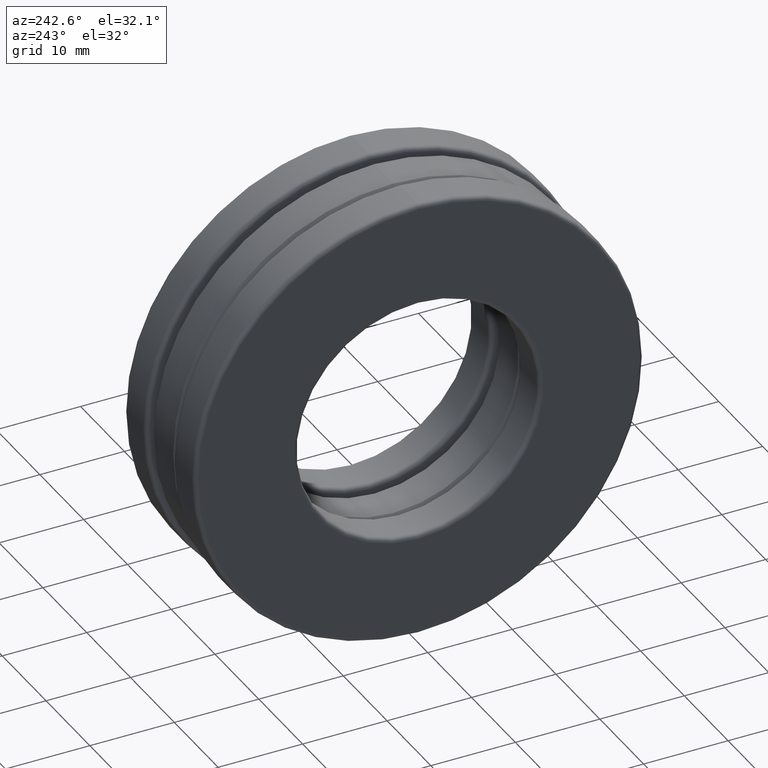
[diagram: clean part render]
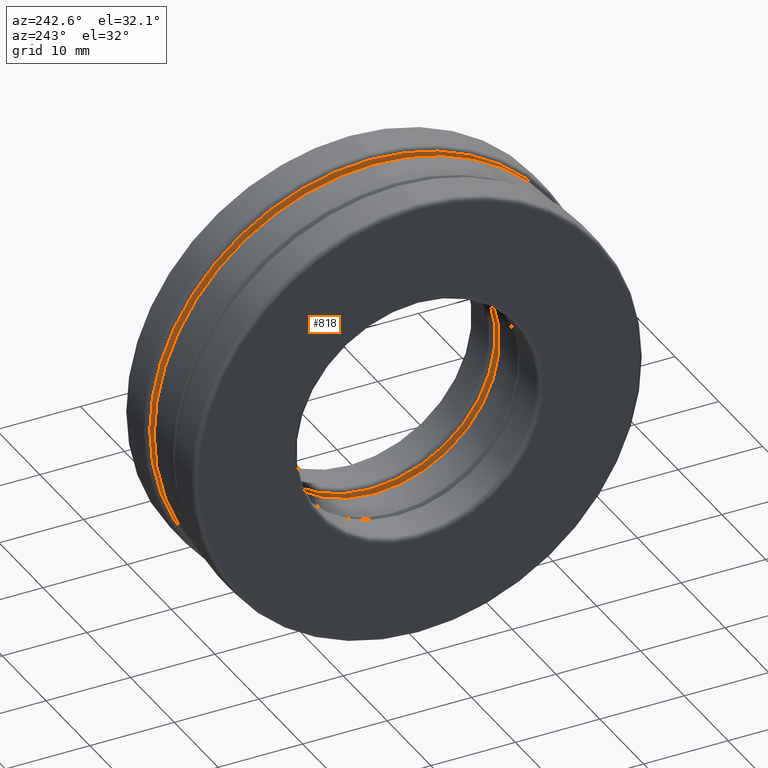
[diagram: same view with one face highlighted and labeled with its STEP entity id]
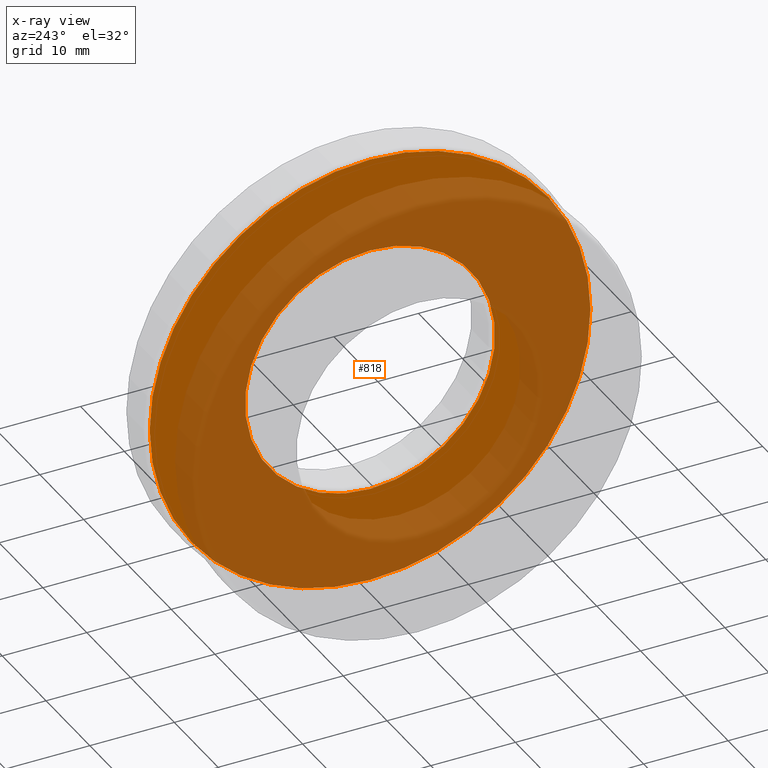
[diagram: x-ray of the same camera — body ghosted, the highlighted face saturated]
A machine part, auxiliary view. The second image highlights one B-rep face of the part: STEP entity #818.
The next image is the same camera in x-ray: the body ghosted, the highlighted face saturated — about 71% of this face is hidden behind the body in this view.
In plain terms, the highlighted planar face has unit normal (1, 0, 0).
Its self-contained STEP definition (entity closure, byte-faithful):
#35 = FACE_OUTER_BOUND ( 'NONE', #831, .T. ) ;
#155 = DIRECTION ( 'NONE',  ( 1.000000000000000000, 0.0000000000000000000, 0.0000000000000000000 ) ) ;
#224 = ORIENTED_EDGE ( 'NONE', *, *, #949, .T. ) ;
#234 = FACE_BOUND ( 'NONE', #1178, .T. ) ;
#244 = CARTESIAN_POINT ( 'NONE',  ( 0.1250000000000000000, 0.0000000000000000000, 0.0000000000000000000 ) ) ;
#248 = DIRECTION ( 'NONE',  ( 0.0000000000000000000, 0.0000000000000000000, 1.000000000000000000 ) ) ;
#264 = EDGE_CURVE ( 'NONE', #517, #517, #402, .T. ) ;
#402 = CIRCLE ( 'NONE', #991, 0.5825000000000000200 ) ;
#468 = VERTEX_POINT ( 'NONE', #1224 ) ;
#505 = DIRECTION ( 'NONE',  ( 0.0000000000000000000, 0.0000000000000000000, -1.000000000000000000 ) ) ;
#517 = VERTEX_POINT ( 'NONE', #645 ) ;
#626 = DIRECTION ( 'NONE',  ( -1.000000000000000000, -0.0000000000000000000, -0.0000000000000000000 ) ) ;
#645 = CARTESIAN_POINT ( 'NONE',  ( 0.1250000000000000000, 0.0000000000000000000, 0.5825000000000000200 ) ) ;
#720 = PLANE ( 'NONE',  #823 ) ;
#816 = DIRECTION ( 'NONE',  ( -1.000000000000000000, -0.0000000000000000000, -0.0000000000000000000 ) ) ;
#818 = ADVANCED_FACE ( 'NONE', ( #234, #35 ), #720, .F. ) ;
#823 = AXIS2_PLACEMENT_3D ( 'NONE', #840, #155, #505 ) ;
#831 = EDGE_LOOP ( 'NONE', ( #224 ) ) ;
#840 = CARTESIAN_POINT ( 'NONE',  ( 0.1250000000000000000, 0.0000000000000000000, 0.0000000000000000000 ) ) ;
#873 = CARTESIAN_POINT ( 'NONE',  ( 0.1250000000000000000, 0.0000000000000000000, 0.0000000000000000000 ) ) ;
#949 = EDGE_CURVE ( 'NONE', #468, #468, #1144, .T. ) ;
#991 = AXIS2_PLACEMENT_3D ( 'NONE', #244, #816, #248 ) ;
#1038 = AXIS2_PLACEMENT_3D ( 'NONE', #873, #626, #1333 ) ;
#1144 = CIRCLE ( 'NONE', #1038, 1.026875000000000000 ) ;
#1178 = EDGE_LOOP ( 'NONE', ( #1217 ) ) ;
#1217 = ORIENTED_EDGE ( 'NONE', *, *, #264, .F. ) ;
#1224 = CARTESIAN_POINT ( 'NONE',  ( 0.1250000000000000000, 0.0000000000000000000, 1.026875000000000000 ) ) ;
#1333 = DIRECTION ( 'NONE',  ( 0.0000000000000000000, 0.0000000000000000000, 1.000000000000000000 ) ) ;